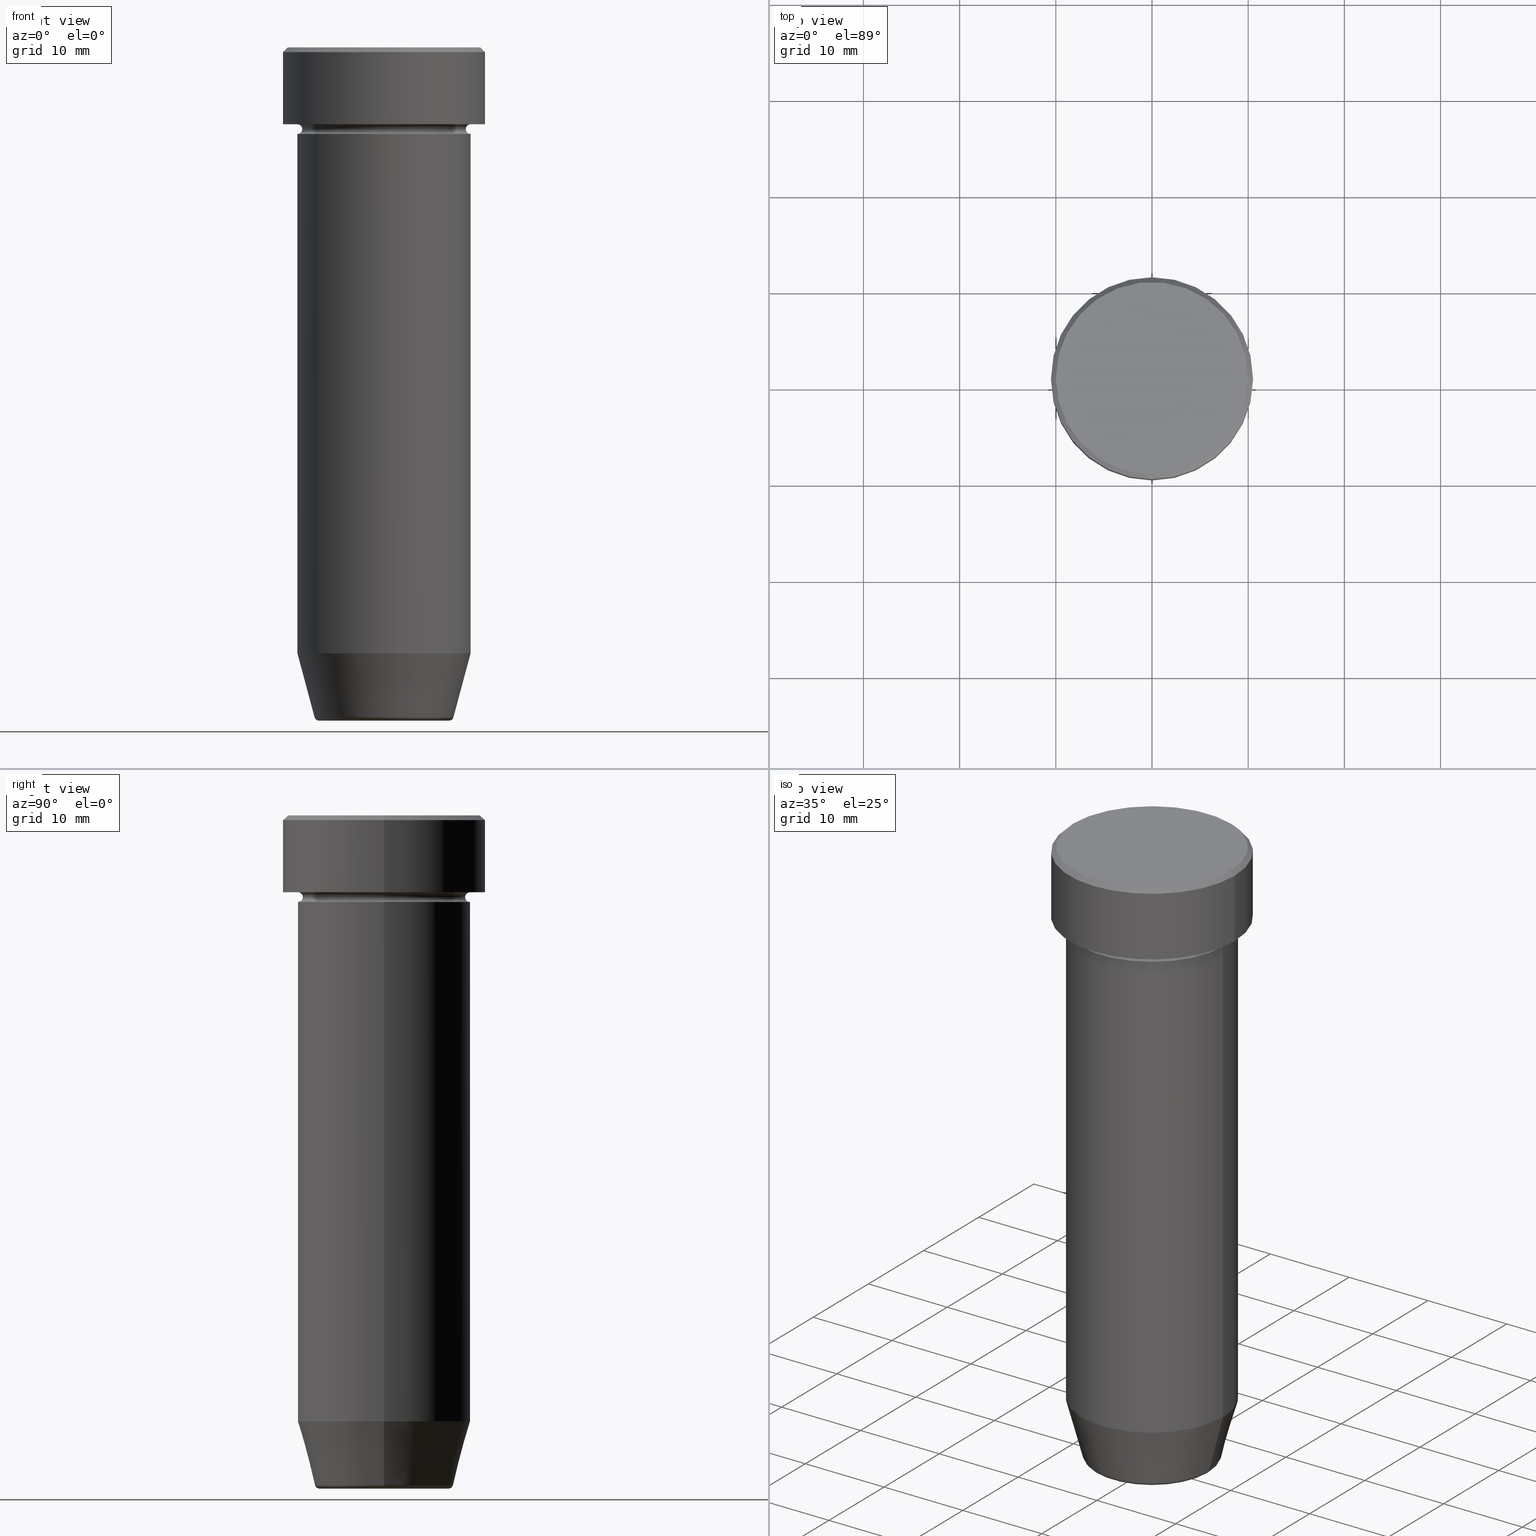
[diagram: canonical four-view strip — front | top / right | iso, engineering-drawing reading convention]
A machine part, canonical four-view strip (front | top / right | iso — engineering-drawing reading convention). The complete STEP part file that produces these views, byte-faithful:
ISO-10303-21;
HEADER;
FILE_DESCRIPTION (( 'STEP AP203' ),
    '1' );
FILE_NAME ('5c41.STEP',
    '2024-01-02T22:09:06',
    ( '' ),
    ( '' ),
    'SwSTEP 2.0',
    'SolidWorks 2019',
    '' );
FILE_SCHEMA (( 'CONFIG_CONTROL_DESIGN' ));
ENDSEC;

DATA;
#1 = AXIS2_PLACEMENT_3D ( 'NONE', #76, #466, #593 ) ;
#2 = DIRECTION ( 'NONE',  ( -1.000000000000000000, 0.000000000000000000, 0.000000000000000000 ) ) ;
#3 = FACE_OUTER_BOUND ( 'NONE', #140, .T. ) ;
#4 = CARTESIAN_POINT ( 'NONE',  ( 0.000000000000000000, 0.000000000000000000, 0.000000000000000000 ) ) ;
#5 = APPROVAL_DATE_TIME ( #443, #194 ) ;
#6 = AXIS2_PLACEMENT_3D ( 'NONE', #481, #148, #513 ) ;
#7 = EDGE_LOOP ( 'NONE', ( #433, #270, #402, #157 ) ) ;
#8 = PLANE ( 'NONE',  #525 ) ;
#9 = EDGE_CURVE ( 'NONE', #576, #27, #436, .T. ) ;
#10 = DIRECTION ( 'NONE',  ( 1.000000000000000000, 0.000000000000000000, 0.000000000000000000 ) ) ;
#11 = CARTESIAN_POINT ( 'NONE',  ( 8.499999999999998224, 0.000000000000000000, -8.500000000000000000 ) ) ;
#12 = AXIS2_PLACEMENT_3D ( 'NONE', #543, #279, #467 ) ;
#13 = DIRECTION ( 'NONE',  ( -1.000000000000000000, 0.000000000000000000, -0.000000000000000000 ) ) ;
#14 = VERTEX_POINT ( 'NONE', #256 ) ;
#15 = AXIS2_PLACEMENT_3D ( 'NONE', #400, #403, #258 ) ;
#16 = EDGE_CURVE ( 'NONE', #189, #68, #250, .T. ) ;
#17 = VERTEX_POINT ( 'NONE', #309 ) ;
#18 = CARTESIAN_POINT ( 'NONE',  ( 0.000000000000000000, 0.000000000000000000, -22.00000000000000000 ) ) ;
#19 = ADVANCED_FACE ( 'NONE', ( #540 ), #352, .T. ) ;
#20 = ORIENTED_EDGE ( 'NONE', *, *, #134, .T. ) ;
#21 = APPLICATION_PROTOCOL_DEFINITION ( 'international standard', 'config_control_design', 1994, #122 ) ;
#22 = DIRECTION ( 'NONE',  ( -1.000000000000000000, 0.000000000000000000, -0.000000000000000000 ) ) ;
#23 = CONICAL_SURFACE ( 'NONE', #12, 7.124355652982132803, 0.2617993877991502405 ) ;
#24 = EDGE_CURVE ( 'NONE', #14, #412, #153, .T. ) ;
#25 = CARTESIAN_POINT ( 'NONE',  ( 0.000000000000000000, 0.000000000000000000, 0.000000000000000000 ) ) ;
#26 = TOROIDAL_SURFACE ( 'NONE', #186, 9.000000000000000000, 0.5000000000000000000 ) ;
#27 = VERTEX_POINT ( 'NONE', #269 ) ;
#28 = ADVANCED_FACE ( 'NONE', ( #471 ), #130, .T. ) ;
#29 = DIRECTION ( 'NONE',  ( -0.000000000000000000, -0.000000000000000000, 1.000000000000000000 ) ) ;
#30 = ORIENTED_EDGE ( 'NONE', *, *, #490, .F. ) ;
#31 = APPROVAL_ROLE ( '' ) ;
#32 = CARTESIAN_POINT ( 'NONE',  ( -9.000000000000000000, 1.102182119232617714E-15, -63.00000000000000000 ) ) ;
#33 = ADVANCED_FACE ( 'NONE', ( #230 ), #23, .T. ) ;
#34 =( NAMED_UNIT ( * ) SI_UNIT ( $, .STERADIAN. ) SOLID_ANGLE_UNIT ( ) );
#35 = CARTESIAN_POINT ( 'NONE',  ( 0.000000000000000000, 0.000000000000000000, 0.000000000000000000 ) ) ;
#36 = ORIENTED_EDGE ( 'NONE', *, *, #241, .T. ) ;
#37 = AXIS2_PLACEMENT_3D ( 'NONE', #71, #273, #368 ) ;
#38 = FACE_OUTER_BOUND ( 'NONE', #114, .T. ) ;
#39 = EDGE_LOOP ( 'NONE', ( #353, #228, #390, #304 ) ) ;
#40 = DIRECTION ( 'NONE',  ( -1.000000000000000000, 0.000000000000000000, 0.000000000000000000 ) ) ;
#41 = ORIENTED_EDGE ( 'NONE', *, *, #328, .T. ) ;
#42 = AXIS2_PLACEMENT_3D ( 'NONE', #274, #372, #133 ) ;
#43 = CONICAL_SURFACE ( 'NONE', #147, 10.00000000000000178, 0.7853981633974447263 ) ;
#44 = AXIS2_PLACEMENT_3D ( 'NONE', #294, #145, #290 ) ;
#45 = FACE_OUTER_BOUND ( 'NONE', #202, .T. ) ;
#46 = ADVANCED_FACE ( 'NONE', ( #420 ), #298, .T. ) ;
#47 = ORIENTED_EDGE ( 'NONE', *, *, #204, .T. ) ;
#48 = CARTESIAN_POINT ( 'NONE',  ( 0.000000000000000000, 0.000000000000000000, -22.00000000000000000 ) ) ;
#49 = CARTESIAN_POINT ( 'NONE',  ( -9.000000000000000000, 1.102182119232617714E-15, 0.000000000000000000 ) ) ;
#50 = CIRCLE ( 'NONE', #15, 9.000000000000000000 ) ;
#51 = AXIS2_PLACEMENT_3D ( 'NONE', #452, #522, #97 ) ;
#52 = LINE ( 'NONE', #268, #191 ) ;
#53 = PERSON_AND_ORGANIZATION ( #166, #411 ) ;
#54 = DIRECTION ( 'NONE',  ( 1.224646799147353207E-16, 1.000000000000000000, 0.000000000000000000 ) ) ;
#55 = ORIENTED_EDGE ( 'NONE', *, *, #335, .T. ) ;
#56 = EDGE_CURVE ( 'NONE', #27, #576, #446, .T. ) ;
#57 = DIRECTION ( 'NONE',  ( 1.000000000000000000, 0.000000000000000000, 0.000000000000000000 ) ) ;
#58 = VERTEX_POINT ( 'NONE', #240 ) ;
#59 = ORIENTED_EDGE ( 'NONE', *, *, #138, .F. ) ;
#60 = CIRCLE ( 'NONE', #72, 0.5000000000000004441 ) ;
#61 = DIRECTION ( 'NONE',  ( -1.000000000000000000, 1.224646799147351482E-16, 0.000000000000000000 ) ) ;
#62 = CC_DESIGN_APPROVAL ( #88, ( #209 ) ) ;
#63 = DIRECTION ( 'NONE',  ( -1.000000000000000000, 1.224646799147353454E-16, 0.000000000000000000 ) ) ;
#64 = PERSON_AND_ORGANIZATION_ROLE ( 'design_owner' ) ;
#65 = CARTESIAN_POINT ( 'NONE',  ( 6.740692158992652061, 0.000000000000000000, -70.00000000000000000 ) ) ;
#66 = ORIENTED_EDGE ( 'NONE', *, *, #101, .T. ) ;
#67 = EDGE_CURVE ( 'NONE', #14, #245, #337, .T. ) ;
#68 = VERTEX_POINT ( 'NONE', #291 ) ;
#69 = FACE_OUTER_BOUND ( 'NONE', #440, .T. ) ;
#70 = DIRECTION ( 'NONE',  ( -0.000000000000000000, -0.000000000000000000, 1.000000000000000000 ) ) ;
#71 = CARTESIAN_POINT ( 'NONE',  ( 0.000000000000000000, 0.000000000000000000, 0.000000000000000000 ) ) ;
#72 = AXIS2_PLACEMENT_3D ( 'NONE', #296, #518, #95 ) ;
#73 = CC_DESIGN_APPROVAL ( #93, ( #451 ) ) ;
#74 = ORIENTED_EDGE ( 'NONE', *, *, #241, .F. ) ;
#75 = DATE_AND_TIME ( #314, #385 ) ;
#76 = CARTESIAN_POINT ( 'NONE',  ( 0.000000000000000000, 0.000000000000000000, -70.00000000000000000 ) ) ;
#77 = DATE_AND_TIME ( #218, #236 ) ;
#78 = LINE ( 'NONE', #183, #184 ) ;
#79 = ORIENTED_EDGE ( 'NONE', *, *, #216, .F. ) ;
#80 = CARTESIAN_POINT ( 'NONE',  ( 9.000000000000000000, 0.000000000000000000, -9.000000000000001776 ) ) ;
#81 = EDGE_CURVE ( 'NONE', #245, #319, #60, .T. ) ;
#82 = AXIS2_PLACEMENT_3D ( 'NONE', #91, #340, #383 ) ;
#83 = ORIENTED_EDGE ( 'NONE', *, *, #514, .F. ) ;
#84 = ORIENTED_EDGE ( 'NONE', *, *, #595, .F. ) ;
#85 = DIRECTION ( 'NONE',  ( -0.000000000000000000, -0.000000000000000000, 1.000000000000000000 ) ) ;
#86 = CALENDAR_DATE ( 2024, 2, 1 ) ;
#87 = CARTESIAN_POINT ( 'NONE',  ( 7.124355652982132803, 0.000000000000000000, -70.00000000000000000 ) ) ;
#88 = APPROVAL ( #544, 'NEUR�EN�' ) ;
#89 = AXIS2_PLACEMENT_3D ( 'NONE', #373, #70, #235 ) ;
#90 = CARTESIAN_POINT ( 'NONE',  ( 0.000000000000000000, 0.000000000000000000, 0.000000000000000000 ) ) ;
#91 = CARTESIAN_POINT ( 'NONE',  ( 0.000000000000000000, 0.000000000000000000, -8.500000000000000000 ) ) ;
#92 = CIRCLE ( 'NONE', #146, 9.000000000000000000 ) ;
#93 = APPROVAL ( #277, 'NEUR�EN�' ) ;
#94 = CIRCLE ( 'NONE', #526, 9.000000000000000000 ) ;
#95 = DIRECTION ( 'NONE',  ( 0.000000000000000000, 0.000000000000000000, -1.000000000000000000 ) ) ;
#96 = CARTESIAN_POINT ( 'NONE',  ( -9.000000000000000000, 1.102182119232617714E-15, -22.00000000000000000 ) ) ;
#97 = DIRECTION ( 'NONE',  ( 1.000000000000000000, 0.000000000000000000, 0.000000000000000000 ) ) ;
#98 = ORIENTED_EDGE ( 'NONE', *, *, #335, .F. ) ;
#99 = CARTESIAN_POINT ( 'NONE',  ( 6.740692158992652061, 0.000000000000000000, -69.50000000000000000 ) ) ;
#100 = SHAPE_DEFINITION_REPRESENTATION ( #275, #547 ) ;
#101 = EDGE_CURVE ( 'NONE', #109, #307, #341, .T. ) ;
#102 = CIRCLE ( 'NONE', #310, 7.223655072137190380 ) ;
#103 = CIRCLE ( 'NONE', #334, 9.000000000000000000 ) ;
#104 = ORIENTED_EDGE ( 'NONE', *, *, #168, .F. ) ;
#105 = CARTESIAN_POINT ( 'NONE',  ( 0.000000000000000000, 0.000000000000000000, -70.00000000000000000 ) ) ;
#106 = ORIENTED_EDGE ( 'NONE', *, *, #196, .F. ) ;
#107 = ORIENTED_EDGE ( 'NONE', *, *, #24, .T. ) ;
#108 = CARTESIAN_POINT ( 'NONE',  ( 0.000000000000000000, 9.000000000000000000, -22.00000000000000000 ) ) ;
#109 = VERTEX_POINT ( 'NONE', #149 ) ;
#110 = DIRECTION ( 'NONE',  ( 1.000000000000000000, 0.000000000000000000, 0.000000000000000000 ) ) ;
#111 = ORIENTED_EDGE ( 'NONE', *, *, #155, .F. ) ;
#112 = CARTESIAN_POINT ( 'NONE',  ( -9.000000000000000000, 0.000000000000000000, -8.000000000000000000 ) ) ;
#113 = DIRECTION ( 'NONE',  ( -0.7071067811865450192, 0.000000000000000000, -0.7071067811865500152 ) ) ;
#114 = EDGE_LOOP ( 'NONE', ( #346, #396, #331, #170 ) ) ;
#115 = CIRCLE ( 'NONE', #397, 9.000000000000000000 ) ;
#116 = CARTESIAN_POINT ( 'NONE',  ( 0.000000000000000000, 0.000000000000000000, -69.62940952255125637 ) ) ;
#117 = LOCAL_TIME ( 23, 9, 6.000000000000000000, #589 ) ;
#118 = DIRECTION ( 'NONE',  ( 1.224646799147353207E-16, 1.000000000000000000, 0.000000000000000000 ) ) ;
#119 = PRODUCT ( '5c41', '5c41', '', ( #464 ) ) ;
#120 = CARTESIAN_POINT ( 'NONE',  ( 7.223655072137190380, 0.000000000000000000, -69.62940952255125637 ) ) ;
#121 = EDGE_CURVE ( 'NONE', #576, #412, #482, .T. ) ;
#122 = APPLICATION_CONTEXT ( 'configuration controlled 3d designs of mechanical parts and assemblies' ) ;
#123 = ORIENTED_EDGE ( 'NONE', *, *, #282, .F. ) ;
#124 = ORIENTED_EDGE ( 'NONE', *, *, #138, .T. ) ;
#125 = DIRECTION ( 'NONE',  ( -0.000000000000000000, -0.000000000000000000, 1.000000000000000000 ) ) ;
#126 = ADVANCED_FACE ( 'NONE', ( #476 ), #8, .T. ) ;
#127 = COORDINATED_UNIVERSAL_TIME_OFFSET ( 1, 0, .AHEAD. ) ;
#128 = DIRECTION ( 'NONE',  ( -1.000000000000000000, 0.000000000000000000, 0.000000000000000000 ) ) ;
#129 = AXIS2_PLACEMENT_3D ( 'NONE', #35, #29, #415 ) ;
#130 = CYLINDRICAL_SURFACE ( 'NONE', #428, 9.000000000000000000 ) ;
#131 = AXIS2_PLACEMENT_3D ( 'NONE', #448, #488, #394 ) ;
#132 = DATE_AND_TIME ( #369, #117 ) ;
#133 = DIRECTION ( 'NONE',  ( -1.000000000000000000, 0.000000000000000000, 0.000000000000000000 ) ) ;
#134 = EDGE_CURVE ( 'NONE', #399, #305, #102, .T. ) ;
#135 = FACE_OUTER_BOUND ( 'NONE', #7, .T. ) ;
#136 = EDGE_LOOP ( 'NONE', ( #84, #20, #564, #492 ) ) ;
#137 = CARTESIAN_POINT ( 'NONE',  ( 0.000000000000000000, 0.000000000000000000, -69.62940952255125637 ) ) ;
#138 = EDGE_CURVE ( 'NONE', #289, #460, #524, .T. ) ;
#139 = CIRCLE ( 'NONE', #302, 0.5000000000000004441 ) ;
#140 = EDGE_LOOP ( 'NONE', ( #98, #260, #83, #160 ) ) ;
#141 = SECURITY_CLASSIFICATION ( '', '', #386 ) ;
#142 = CYLINDRICAL_SURFACE ( 'NONE', #192, 9.000000000000000000 ) ;
#143 = CC_DESIGN_PERSON_AND_ORGANIZATION_ASSIGNMENT ( #249, #336, ( #451 ) ) ;
#144 = EDGE_CURVE ( 'NONE', #68, #399, #439, .T. ) ;
#145 = DIRECTION ( 'NONE',  ( -0.000000000000000000, -0.000000000000000000, 1.000000000000000000 ) ) ;
#146 = AXIS2_PLACEMENT_3D ( 'NONE', #349, #529, #110 ) ;
#147 = AXIS2_PLACEMENT_3D ( 'NONE', #4, #198, #2 ) ;
#148 = DIRECTION ( 'NONE',  ( -0.000000000000000000, -0.000000000000000000, 1.000000000000000000 ) ) ;
#149 = CARTESIAN_POINT ( 'NONE',  ( -10.50000000000000000, 1.285879139104720831E-15, -8.000000000000000000 ) ) ;
#150 = CC_DESIGN_DATE_AND_TIME_ASSIGNMENT ( #75, #577, ( #209 ) ) ;
#151 = EDGE_CURVE ( 'NONE', #58, #289, #50, .T. ) ;
#152 = ORIENTED_EDGE ( 'NONE', *, *, #155, .T. ) ;
#153 = CIRCLE ( 'NONE', #219, 0.5000000000000004441 ) ;
#154 = FACE_OUTER_BOUND ( 'NONE', #447, .T. ) ;
#155 = EDGE_CURVE ( 'NONE', #14, #530, #139, .T. ) ;
#156 = DIRECTION ( 'NONE',  ( -0.000000000000000000, -0.000000000000000000, 1.000000000000000000 ) ) ;
#157 = ORIENTED_EDGE ( 'NONE', *, *, #231, .F. ) ;
#158 = AXIS2_PLACEMENT_3D ( 'NONE', #278, #545, #239 ) ;
#159 = AXIS2_PLACEMENT_3D ( 'NONE', #137, #85, #40 ) ;
#160 = ORIENTED_EDGE ( 'NONE', *, *, #195, .F. ) ;
#161 = DIRECTION ( 'NONE',  ( 0.000000000000000000, 0.000000000000000000, -1.000000000000000000 ) ) ;
#162 = DIRECTION ( 'NONE',  ( 1.000000000000000000, 0.000000000000000000, 0.000000000000000000 ) ) ;
#163 = DIRECTION ( 'NONE',  ( 0.000000000000000000, 0.000000000000000000, -1.000000000000000000 ) ) ;
#164 = CARTESIAN_POINT ( 'NONE',  ( -9.000000000000000000, 1.102182119232617714E-15, 0.000000000000000000 ) ) ;
#165 = CARTESIAN_POINT ( 'NONE',  ( 0.000000000000000000, 0.000000000000000000, -22.00000000000000000 ) ) ;
#166 = PERSON ( 'NEUR�EN�', 'NEUR�EN�', 'NEUR�EN�', ('NEUR�EN�'), ('NEUR�EN�'), ('NEUR�EN�') ) ;
#167 = ORIENTED_EDGE ( 'NONE', *, *, #9, .F. ) ;
#168 = EDGE_CURVE ( 'NONE', #325, #221, #308, .T. ) ;
#169 = FACE_OUTER_BOUND ( 'NONE', #374, .T. ) ;
#170 = ORIENTED_EDGE ( 'NONE', *, *, #421, .T. ) ;
#171 = PERSON_AND_ORGANIZATION ( #166, #411 ) ;
#172 = VECTOR ( 'NONE', #438, 1000.000000000000000 ) ;
#173 = DIRECTION ( 'NONE',  ( -1.224646799147353207E-16, 1.000000000000000000, 0.000000000000000000 ) ) ;
#174 = AXIS2_PLACEMENT_3D ( 'NONE', #329, #223, #419 ) ;
#175 = EDGE_LOOP ( 'NONE', ( #568, #55 ) ) ;
#176 = EDGE_LOOP ( 'NONE', ( #232, #498, #565, #178 ) ) ;
#177 = ADVANCED_FACE ( 'NONE', ( #345 ), #431, .T. ) ;
#178 = ORIENTED_EDGE ( 'NONE', *, *, #328, .F. ) ;
#179 = PERSON_AND_ORGANIZATION ( #166, #411 ) ;
#180 = DIRECTION ( 'NONE',  ( 0.000000000000000000, 0.000000000000000000, -1.000000000000000000 ) ) ;
#181 = AXIS2_PLACEMENT_3D ( 'NONE', #185, #548, #225 ) ;
#182 = APPROVAL_ROLE ( '' ) ;
#183 = CARTESIAN_POINT ( 'NONE',  ( 9.000000000000000000, 0.000000000000000000, 0.000000000000000000 ) ) ;
#184 = VECTOR ( 'NONE', #505, 1000.000000000000000 ) ;
#185 = CARTESIAN_POINT ( 'NONE',  ( 0.000000000000000000, 0.000000000000000000, -22.00000000000000000 ) ) ;
#186 = AXIS2_PLACEMENT_3D ( 'NONE', #557, #434, #333 ) ;
#187 = LINE ( 'NONE', #542, #293 ) ;
#188 = DIRECTION ( 'NONE',  ( 1.000000000000000000, 0.000000000000000000, 0.000000000000000000 ) ) ;
#189 = VERTEX_POINT ( 'NONE', #65 ) ;
#190 = CARTESIAN_POINT ( 'NONE',  ( 0.000000000000000000, 0.000000000000000000, -9.000000000000001776 ) ) ;
#191 = VECTOR ( 'NONE', #113, 1000.000000000000000 ) ;
#192 = AXIS2_PLACEMENT_3D ( 'NONE', #90, #515, #430 ) ;
#193 = DIRECTION ( 'NONE',  ( -0.000000000000000000, -0.000000000000000000, 1.000000000000000000 ) ) ;
#194 = APPROVAL ( #257, 'NEUR�EN�' ) ;
#195 = EDGE_CURVE ( 'NONE', #189, #305, #410, .T. ) ;
#196 = EDGE_CURVE ( 'NONE', #307, #109, #264, .T. ) ;
#197 = AXIS2_PLACEMENT_3D ( 'NONE', #445, #442, #162 ) ;
#198 = DIRECTION ( 'NONE',  ( 0.000000000000000000, 0.000000000000000000, -1.000000000000000000 ) ) ;
#199 = DIRECTION ( 'NONE',  ( 1.000000000000000000, 0.000000000000000000, 0.000000000000000000 ) ) ;
#200 = CIRCLE ( 'NONE', #422, 10.00000000000000178 ) ;
#201 = CC_DESIGN_APPROVAL ( #194, ( #141 ) ) ;
#202 = EDGE_LOOP ( 'NONE', ( #74, #506, #417, #79 ) ) ;
#203 = CARTESIAN_POINT ( 'NONE',  ( 0.000000000000000000, 0.000000000000000000, 0.000000000000000000 ) ) ;
#204 = EDGE_CURVE ( 'NONE', #221, #596, #222, .T. ) ;
#205 = CARTESIAN_POINT ( 'NONE',  ( -9.000000000000000000, 1.102182119232617714E-15, -22.00000000000000000 ) ) ;
#206 = ORIENTED_EDGE ( 'NONE', *, *, #312, .F. ) ;
#207 = DIRECTION ( 'NONE',  ( 0.000000000000000000, 0.000000000000000000, -1.000000000000000000 ) ) ;
#208 = ORIENTED_EDGE ( 'NONE', *, *, #67, .F. ) ;
#209 = PRODUCT_DEFINITION ( 'NEZN�M�', '', #451, #247 ) ;
#210 = MANIFOLD_SOLID_BREP ( 'Zaoblit4', #354 ) ;
#211 = DIRECTION ( 'NONE',  ( -0.000000000000000000, -0.000000000000000000, 1.000000000000000000 ) ) ;
#212 = EDGE_LOOP ( 'NONE', ( #123, #377, #152, #206 ) ) ;
#213 = ORIENTED_EDGE ( 'NONE', *, *, #317, .F. ) ;
#214 = VECTOR ( 'NONE', #266, 1000.000000000000000 ) ;
#215 = ORIENTED_EDGE ( 'NONE', *, *, #317, .T. ) ;
#216 = EDGE_CURVE ( 'NONE', #584, #596, #52, .T. ) ;
#217 = DIRECTION ( 'NONE',  ( -1.000000000000000000, 0.000000000000000000, 0.000000000000000000 ) ) ;
#218 = CALENDAR_DATE ( 2024, 2, 1 ) ;
#219 = AXIS2_PLACEMENT_3D ( 'NONE', #455, #118, #63 ) ;
#220 = CARTESIAN_POINT ( 'NONE',  ( 0.000000000000000000, 0.000000000000000000, -8.000000000000000000 ) ) ;
#221 = VERTEX_POINT ( 'NONE', #493 ) ;
#222 = CIRCLE ( 'NONE', #320, 10.50000000000000000 ) ;
#223 = DIRECTION ( 'NONE',  ( -0.000000000000000000, -0.000000000000000000, 1.000000000000000000 ) ) ;
#224 = AXIS2_PLACEMENT_3D ( 'NONE', #427, #598, #10 ) ;
#225 = DIRECTION ( 'NONE',  ( 1.000000000000000000, 0.000000000000000000, 0.000000000000000000 ) ) ;
#226 = ORIENTED_EDGE ( 'NONE', *, *, #560, .F. ) ;
#227 = CARTESIAN_POINT ( 'NONE',  ( 0.000000000000000000, 0.000000000000000000, -8.000000000000000000 ) ) ;
#228 = ORIENTED_EDGE ( 'NONE', *, *, #595, .T. ) ;
#229 = CYLINDRICAL_SURFACE ( 'NONE', #558, 10.50000000000000000 ) ;
#230 = FACE_OUTER_BOUND ( 'NONE', #136, .T. ) ;
#231 = EDGE_CURVE ( 'NONE', #307, #221, #497, .T. ) ;
#232 = ORIENTED_EDGE ( 'NONE', *, *, #56, .T. ) ;
#233 = LINE ( 'NONE', #364, #380 ) ;
#234 = DIRECTION ( 'NONE',  ( -0.000000000000000000, -0.000000000000000000, 1.000000000000000000 ) ) ;
#235 = DIRECTION ( 'NONE',  ( 1.000000000000000000, 0.000000000000000000, 0.000000000000000000 ) ) ;
#236 = LOCAL_TIME ( 23, 9, 6.000000000000000000, #127 ) ;
#237 = ADVANCED_FACE ( 'NONE', ( #169 ), #485, .F. ) ;
#238 = ORIENTED_EDGE ( 'NONE', *, *, #282, .T. ) ;
#239 = DIRECTION ( 'NONE',  ( 1.000000000000000000, 0.000000000000000000, 0.000000000000000000 ) ) ;
#240 = CARTESIAN_POINT ( 'NONE',  ( 9.000000000000000000, 0.000000000000000000, -63.00000000000000000 ) ) ;
#241 = EDGE_CURVE ( 'NONE', #325, #584, #200, .T. ) ;
#242 = PERSON_AND_ORGANIZATION ( #166, #411 ) ;
#243 = CC_DESIGN_PERSON_AND_ORGANIZATION_ASSIGNMENT ( #327, #538, ( #451 ) ) ;
#244 = AXIS2_PLACEMENT_3D ( 'NONE', #25, #180, #590 ) ;
#245 = VERTEX_POINT ( 'NONE', #11 ) ;
#246 = VECTOR ( 'NONE', #553, 1000.000000000000114 ) ;
#247 = DESIGN_CONTEXT ( 'detailed design', #122, 'design' ) ;
#248 = ADVANCED_FACE ( 'NONE', ( #563, #154 ), #569, .T. ) ;
#249 = PERSON_AND_ORGANIZATION ( #166, #411 ) ;
#250 = CIRCLE ( 'NONE', #197, 6.740692158992652061 ) ;
#251 = CARTESIAN_POINT ( 'NONE',  ( 0.000000000000000000, 0.000000000000000000, -8.000000000000000000 ) ) ;
#252 = EDGE_CURVE ( 'NONE', #412, #319, #92, .T. ) ;
#253 = CIRCLE ( 'NONE', #224, 10.50000000000000000 ) ;
#254 = ORIENTED_EDGE ( 'NONE', *, *, #252, .T. ) ;
#255 = CARTESIAN_POINT ( 'NONE',  ( 0.000000000000000000, 0.000000000000000000, 0.000000000000000000 ) ) ;
#256 = CARTESIAN_POINT ( 'NONE',  ( -8.499999999999998224, 1.071565949253933927E-15, -8.500000000000000000 ) ) ;
#257 = APPROVAL_STATUS ( 'not_yet_approved' ) ;
#258 = DIRECTION ( 'NONE',  ( 1.000000000000000000, 0.000000000000000000, 0.000000000000000000 ) ) ;
#259 = DIRECTION ( 'NONE',  ( 1.000000000000000000, 0.000000000000000000, 0.000000000000000000 ) ) ;
#260 = ORIENTED_EDGE ( 'NONE', *, *, #144, .T. ) ;
#261 = ADVANCED_FACE ( 'NONE', ( #499 ), #365, .T. ) ;
#262 = DIRECTION ( 'NONE',  ( 0.7071067811865450192, 8.659560562354902043E-17, -0.7071067811865500152 ) ) ;
#263 = ORIENTED_EDGE ( 'NONE', *, *, #343, .F. ) ;
#264 = CIRCLE ( 'NONE', #536, 10.50000000000000000 ) ;
#265 = LOCAL_TIME ( 23, 9, 6.000000000000000000, #483 ) ;
#266 = DIRECTION ( 'NONE',  ( -0.000000000000000000, -0.000000000000000000, 1.000000000000000000 ) ) ;
#267 = ORIENTED_EDGE ( 'NONE', *, *, #134, .F. ) ;
#268 = CARTESIAN_POINT ( 'NONE',  ( -10.00000000000000178, 0.000000000000000000, 0.000000000000000000 ) ) ;
#269 = CARTESIAN_POINT ( 'NONE',  ( 9.000000000000000000, 0.000000000000000000, -22.00000000000000000 ) ) ;
#270 = ORIENTED_EDGE ( 'NONE', *, *, #456, .T. ) ;
#271 = DIRECTION ( 'NONE',  ( -0.000000000000000000, -0.000000000000000000, 1.000000000000000000 ) ) ;
#272 = ADVANCED_FACE ( 'NONE', ( #508 ), #286, .F. ) ;
#273 = DIRECTION ( 'NONE',  ( 0.000000000000000000, 0.000000000000000000, 1.000000000000000000 ) ) ;
#274 = CARTESIAN_POINT ( 'NONE',  ( 0.000000000000000000, 0.000000000000000000, -8.500000000000000000 ) ) ;
#275 = PRODUCT_DEFINITION_SHAPE ( 'NONE', 'NONE',  #209 ) ;
#276 = ORIENTED_EDGE ( 'NONE', *, *, #477, .F. ) ;
#277 = APPROVAL_STATUS ( 'not_yet_approved' ) ;
#278 = CARTESIAN_POINT ( 'NONE',  ( 0.000000000000000000, 0.000000000000000000, 0.000000000000000000 ) ) ;
#279 = DIRECTION ( 'NONE',  ( -0.000000000000000000, -0.000000000000000000, 1.000000000000000000 ) ) ;
#280 = PERSON_AND_ORGANIZATION ( #166, #411 ) ;
#281 = CARTESIAN_POINT ( 'NONE',  ( 10.00000000000000178, 1.255262969126037241E-15, 0.000000000000000000 ) ) ;
#282 = EDGE_CURVE ( 'NONE', #245, #17, #384, .T. ) ;
#283 = ORIENTED_EDGE ( 'NONE', *, *, #456, .F. ) ;
#284 = COORDINATED_UNIVERSAL_TIME_OFFSET ( 1, 0, .AHEAD. ) ;
#285 = CARTESIAN_POINT ( 'NONE',  ( 0.000000000000000000, 0.000000000000000000, 0.000000000000000000 ) ) ;
#286 = TOROIDAL_SURFACE ( 'NONE', #42, 9.000000000000000000, 0.5000000000000000000 ) ;
#287 = EDGE_LOOP ( 'NONE', ( #300, #124, #276, #263 ) ) ;
#288 = APPLICATION_CONTEXT ( 'configuration controlled 3d designs of mechanical parts and assemblies' ) ;
#289 = VERTEX_POINT ( 'NONE', #32 ) ;
#290 = DIRECTION ( 'NONE',  ( 1.000000000000000000, 0.000000000000000000, 0.000000000000000000 ) ) ;
#291 = CARTESIAN_POINT ( 'NONE',  ( -6.740692158992652061, 8.550696569392681737E-16, -70.00000000000000000 ) ) ;
#292 = AXIS2_PLACEMENT_3D ( 'NONE', #322, #234, #424 ) ;
#293 = VECTOR ( 'NONE', #271, 1000.000000000000000 ) ;
#294 = CARTESIAN_POINT ( 'NONE',  ( 0.000000000000000000, 0.000000000000000000, -69.50000000000000000 ) ) ;
#295 = ADVANCED_FACE ( 'NONE', ( #362 ), #502, .T. ) ;
#296 = CARTESIAN_POINT ( 'NONE',  ( 9.000000000000000000, 0.000000000000000000, -8.500000000000000000 ) ) ;
#297 = ADVANCED_FACE ( 'NONE', ( #330 ), #470, .T. ) ;
#298 = TOROIDAL_SURFACE ( 'NONE', #89, 6.740692158992652061, 0.5000000000000000000 ) ;
#299 = FACE_OUTER_BOUND ( 'NONE', #175, .T. ) ;
#300 = ORIENTED_EDGE ( 'NONE', *, *, #151, .T. ) ;
#301 = DIRECTION ( 'NONE',  ( 0.000000000000000000, 0.000000000000000000, -1.000000000000000000 ) ) ;
#302 = AXIS2_PLACEMENT_3D ( 'NONE', #306, #491, #207 ) ;
#303 = CARTESIAN_POINT ( 'NONE',  ( 10.00000000000000178, 1.224646799147353454E-15, 0.000000000000000000 ) ) ;
#304 = ORIENTED_EDGE ( 'NONE', *, *, #463, .F. ) ;
#305 = VERTEX_POINT ( 'NONE', #120 ) ;
#306 = CARTESIAN_POINT ( 'NONE',  ( -9.000000000000000000, 0.000000000000000000, -8.500000000000000000 ) ) ;
#307 = VERTEX_POINT ( 'NONE', #578 ) ;
#308 = LINE ( 'NONE', #303, #495 ) ;
#309 = CARTESIAN_POINT ( 'NONE',  ( 9.000000000000000000, 1.102182119232617714E-15, -8.000000000000000000 ) ) ;
#310 = AXIS2_PLACEMENT_3D ( 'NONE', #116, #211, #217 ) ;
#311 = TOROIDAL_SURFACE ( 'NONE', #174, 9.000000000000000000, 0.5000000000000000000 ) ;
#312 = EDGE_CURVE ( 'NONE', #17, #530, #115, .T. ) ;
#313 = CARTESIAN_POINT ( 'NONE',  ( 0.000000000000000000, 0.000000000000000000, -0.5000000000000023315 ) ) ;
#314 = CALENDAR_DATE ( 2024, 2, 1 ) ;
#315 = DIRECTION ( 'NONE',  ( -0.000000000000000000, -0.000000000000000000, 1.000000000000000000 ) ) ;
#316 = ORIENTED_EDGE ( 'NONE', *, *, #343, .T. ) ;
#317 = EDGE_CURVE ( 'NONE', #584, #325, #546, .T. ) ;
#318 = CARTESIAN_POINT ( 'NONE',  ( -7.223655072137190380, 9.934123627281765110E-16, -69.62940952255125637 ) ) ;
#319 = VERTEX_POINT ( 'NONE', #80 ) ;
#320 = AXIS2_PLACEMENT_3D ( 'NONE', #313, #161, #391 ) ;
#321 = AXIS2_PLACEMENT_3D ( 'NONE', #190, #378, #511 ) ;
#322 = CARTESIAN_POINT ( 'NONE',  ( 0.000000000000000000, 0.000000000000000000, 0.000000000000000000 ) ) ;
#323 = AXIS2_PLACEMENT_3D ( 'NONE', #582, #125, #501 ) ;
#324 = CARTESIAN_POINT ( 'NONE',  ( 0.000000000000000000, 0.000000000000000000, 0.000000000000000000 ) ) ;
#325 = VERTEX_POINT ( 'NONE', #281 ) ;
#326 = CC_DESIGN_PERSON_AND_ORGANIZATION_ASSIGNMENT ( #53, #437, ( #141 ) ) ;
#327 = PERSON_AND_ORGANIZATION ( #166, #411 ) ;
#328 = EDGE_CURVE ( 'NONE', #27, #319, #78, .T. ) ;
#329 = CARTESIAN_POINT ( 'NONE',  ( 0.000000000000000000, 0.000000000000000000, -8.500000000000000000 ) ) ;
#330 = FACE_OUTER_BOUND ( 'NONE', #426, .T. ) ;
#331 = ORIENTED_EDGE ( 'NONE', *, *, #81, .T. ) ;
#332 = APPROVAL_ROLE ( '' ) ;
#333 = DIRECTION ( 'NONE',  ( -1.000000000000000000, 0.000000000000000000, 0.000000000000000000 ) ) ;
#334 = AXIS2_PLACEMENT_3D ( 'NONE', #519, #425, #188 ) ;
#335 = EDGE_CURVE ( 'NONE', #68, #189, #472, .T. ) ;
#336 = PERSON_AND_ORGANIZATION_ROLE ( 'design_supplier' ) ;
#337 = CIRCLE ( 'NONE', #82, 8.499999999999998224 ) ;
#338 = ADVANCED_FACE ( 'NONE', ( #69 ), #311, .F. ) ;
#339 = FACE_OUTER_BOUND ( 'NONE', #212, .T. ) ;
#340 = DIRECTION ( 'NONE',  ( -0.000000000000000000, -0.000000000000000000, 1.000000000000000000 ) ) ;
#341 = CIRCLE ( 'NONE', #516, 10.50000000000000000 ) ;
#342 = VECTOR ( 'NONE', #381, 1000.000000000000000 ) ;
#343 = EDGE_CURVE ( 'NONE', #58, #591, #187, .T. ) ;
#344 = CARTESIAN_POINT ( 'NONE',  ( -10.50000000000000000, 1.285879139104720831E-15, 0.000000000000000000 ) ) ;
#345 = FACE_OUTER_BOUND ( 'NONE', #39, .T. ) ;
#346 = ORIENTED_EDGE ( 'NONE', *, *, #24, .F. ) ;
#347 = CARTESIAN_POINT ( 'NONE',  ( 0.000000000000000000, 10.50000000000000000, -8.000000000000000000 ) ) ;
#348 = AXIS2_PLACEMENT_3D ( 'NONE', #347, #489, #13 ) ;
#349 = CARTESIAN_POINT ( 'NONE',  ( 0.000000000000000000, 0.000000000000000000, -9.000000000000001776 ) ) ;
#350 = EDGE_LOOP ( 'NONE', ( #283, #66, #581, #47 ) ) ;
#351 = DIRECTION ( 'NONE',  ( -0.000000000000000000, -0.000000000000000000, 1.000000000000000000 ) ) ;
#352 = CYLINDRICAL_SURFACE ( 'NONE', #406, 10.50000000000000000 ) ;
#353 = ORIENTED_EDGE ( 'NONE', *, *, #514, .T. ) ;
#354 = CLOSED_SHELL ( 'NONE', ( #416, #177, #465, #237, #28, #33, #587, #46 ) ) ;
#355 = PLANE ( 'NONE',  #51 ) ;
#356 = DIRECTION ( 'NONE',  ( -0.000000000000000000, -0.000000000000000000, 1.000000000000000000 ) ) ;
#357 = EDGE_LOOP ( 'NONE', ( #579, #574, #429, #267 ) ) ;
#358 = AXIS2_PLACEMENT_3D ( 'NONE', #105, #351, #532 ) ;
#360 = APPROVAL_DATE_TIME ( #132, #93 ) ;
#359 = LOCAL_TIME ( 23, 9, 6.000000000000000000, #284 ) ;
#361 = ADVANCED_FACE ( 'NONE', ( #135 ), #229, .T. ) ;
#362 = FACE_OUTER_BOUND ( 'NONE', #413, .T. ) ;
#363 = EDGE_LOOP ( 'NONE', ( #409, #238, #226, #111 ) ) ;
#364 = CARTESIAN_POINT ( 'NONE',  ( -7.124355652982132803, 8.724819346411920171E-16, -70.00000000000000000 ) ) ;
#365 = CYLINDRICAL_SURFACE ( 'NONE', #158, 9.000000000000000000 ) ;
#366 = CC_DESIGN_PERSON_AND_ORGANIZATION_ASSIGNMENT ( #280, #64, ( #119 ) ) ;
#367 = DIRECTION ( 'NONE',  ( 1.000000000000000000, 0.000000000000000000, 0.000000000000000000 ) ) ;
#368 = DIRECTION ( 'NONE',  ( 1.000000000000000000, 0.000000000000000000, 0.000000000000000000 ) ) ;
#369 = CALENDAR_DATE ( 2024, 2, 1 ) ;
#370 = AXIS2_PLACEMENT_3D ( 'NONE', #18, #523, #22 ) ;
#371 = APPROVAL_PERSON_ORGANIZATION ( #179, #88, #182 ) ;
#372 = DIRECTION ( 'NONE',  ( 0.000000000000000000, 0.000000000000000000, -1.000000000000000000 ) ) ;
#373 = CARTESIAN_POINT ( 'NONE',  ( 0.000000000000000000, 0.000000000000000000, -69.50000000000000000 ) ) ;
#374 = EDGE_LOOP ( 'NONE', ( #571, #401 ) ) ;
#375 =( LENGTH_UNIT ( ) NAMED_UNIT ( * ) SI_UNIT ( .MILLI., .METRE. ) );
#376 = LINE ( 'NONE', #87, #246 ) ;
#377 = ORIENTED_EDGE ( 'NONE', *, *, #405, .T. ) ;
#378 = DIRECTION ( 'NONE',  ( -0.000000000000000000, -0.000000000000000000, 1.000000000000000000 ) ) ;
#379 = ADVANCED_FACE ( 'NONE', ( #38 ), #504, .F. ) ;
#380 = VECTOR ( 'NONE', #458, 1000.000000000000114 ) ;
#381 = DIRECTION ( 'NONE',  ( -0.000000000000000000, -0.000000000000000000, 1.000000000000000000 ) ) ;
#382 = DIRECTION ( 'NONE',  ( 1.000000000000000000, 0.000000000000000000, 0.000000000000000000 ) ) ;
#383 = DIRECTION ( 'NONE',  ( 1.000000000000000000, 0.000000000000000000, 0.000000000000000000 ) ) ;
#384 = CIRCLE ( 'NONE', #450, 0.5000000000000004441 ) ;
#385 = LOCAL_TIME ( 23, 9, 6.000000000000000000, #418 ) ;
#386 = SECURITY_CLASSIFICATION_LEVEL ( 'unclassified' ) ;
#387 = DIRECTION ( 'NONE',  ( -0.000000000000000000, -0.000000000000000000, 1.000000000000000000 ) ) ;
#388 = ORIENTED_EDGE ( 'NONE', *, *, #81, .F. ) ;
#389 = CARTESIAN_POINT ( 'NONE',  ( 0.000000000000000000, 0.000000000000000000, -63.00000000000000000 ) ) ;
#390 = ORIENTED_EDGE ( 'NONE', *, *, #151, .F. ) ;
#391 = DIRECTION ( 'NONE',  ( 1.000000000000000000, 0.000000000000000000, 0.000000000000000000 ) ) ;
#392 = CARTESIAN_POINT ( 'NONE',  ( 0.000000000000000000, 0.000000000000000000, 0.000000000000000000 ) ) ;
#393 = CLOSED_SHELL ( 'NONE', ( #475, #272, #338, #261, #361, #573, #126, #19, #248, #297, #379, #432, #295 ) ) ;
#394 = DIRECTION ( 'NONE',  ( -1.000000000000000000, 0.000000000000000000, 0.000000000000000000 ) ) ;
#395 = DIRECTION ( 'NONE',  ( 0.000000000000000000, -1.000000000000000000, 0.000000000000000000 ) ) ;
#396 = ORIENTED_EDGE ( 'NONE', *, *, #405, .F. ) ;
#397 = AXIS2_PLACEMENT_3D ( 'NONE', #227, #315, #128 ) ;
#398 = AXIS2_PLACEMENT_3D ( 'NONE', #48, #193, #382 ) ;
#399 = VERTEX_POINT ( 'NONE', #318 ) ;
#400 = CARTESIAN_POINT ( 'NONE',  ( 0.000000000000000000, 0.000000000000000000, -63.00000000000000000 ) ) ;
#401 = ORIENTED_EDGE ( 'NONE', *, *, #490, .T. ) ;
#402 = ORIENTED_EDGE ( 'NONE', *, *, #521, .T. ) ;
#403 = DIRECTION ( 'NONE',  ( -0.000000000000000000, -0.000000000000000000, 1.000000000000000000 ) ) ;
#404 = DIRECTION ( 'NONE',  ( -0.000000000000000000, -0.000000000000000000, 1.000000000000000000 ) ) ;
#405 = EDGE_CURVE ( 'NONE', #245, #14, #592, .T. ) ;
#406 = AXIS2_PLACEMENT_3D ( 'NONE', #392, #156, #494 ) ;
#407 = PERSON_AND_ORGANIZATION ( #166, #411 ) ;
#408 = CARTESIAN_POINT ( 'NONE',  ( -6.740692158992652061, 8.254967076548012366E-16, -69.50000000000000000 ) ) ;
#409 = ORIENTED_EDGE ( 'NONE', *, *, #67, .T. ) ;
#410 = CIRCLE ( 'NONE', #486, 0.5000000000000004441 ) ;
#411 = ORGANIZATION ( 'NEUR�EN�', 'NEUR�EN�', '' ) ;
#412 = VERTEX_POINT ( 'NONE', #597 ) ;
#413 = EDGE_LOOP ( 'NONE', ( #104, #213, #480, #572 ) ) ;
#414 =( NAMED_UNIT ( * ) PLANE_ANGLE_UNIT ( ) SI_UNIT ( $, .RADIAN. ) );
#415 = DIRECTION ( 'NONE',  ( 1.000000000000000000, 0.000000000000000000, 0.000000000000000000 ) ) ;
#416 = ADVANCED_FACE ( 'NONE', ( #3 ), #423, .T. ) ;
#417 = ORIENTED_EDGE ( 'NONE', *, *, #521, .F. ) ;
#418 = COORDINATED_UNIVERSAL_TIME_OFFSET ( 1, 0, .AHEAD. ) ;
#419 = DIRECTION ( 'NONE',  ( 1.000000000000000000, 0.000000000000000000, 0.000000000000000000 ) ) ;
#420 = FACE_OUTER_BOUND ( 'NONE', #357, .T. ) ;
#421 = EDGE_CURVE ( 'NONE', #319, #412, #570, .T. ) ;
#422 = AXIS2_PLACEMENT_3D ( 'NONE', #255, #441, #444 ) ;
#423 = TOROIDAL_SURFACE ( 'NONE', #44, 6.740692158992652061, 0.5000000000000000000 ) ;
#424 = DIRECTION ( 'NONE',  ( 1.000000000000000000, 0.000000000000000000, 0.000000000000000000 ) ) ;
#425 = DIRECTION ( 'NONE',  ( -0.000000000000000000, -0.000000000000000000, 1.000000000000000000 ) ) ;
#426 = EDGE_LOOP ( 'NONE', ( #468, #535, #41, #554 ) ) ;
#427 = CARTESIAN_POINT ( 'NONE',  ( 0.000000000000000000, 0.000000000000000000, -0.5000000000000023315 ) ) ;
#428 = AXIS2_PLACEMENT_3D ( 'NONE', #324, #583, #367 ) ;
#429 = ORIENTED_EDGE ( 'NONE', *, *, #195, .T. ) ;
#430 = DIRECTION ( 'NONE',  ( 1.000000000000000000, 0.000000000000000000, 0.000000000000000000 ) ) ;
#431 = CONICAL_SURFACE ( 'NONE', #358, 7.124355652982132803, 0.2617993877991502405 ) ;
#432 = ADVANCED_FACE ( 'NONE', ( #339 ), #26, .F. ) ;
#433 = ORIENTED_EDGE ( 'NONE', *, *, #196, .T. ) ;
#434 = DIRECTION ( 'NONE',  ( 0.000000000000000000, 0.000000000000000000, -1.000000000000000000 ) ) ;
#435 = DIRECTION ( 'NONE',  ( -0.000000000000000000, -0.000000000000000000, 1.000000000000000000 ) ) ;
#436 = CIRCLE ( 'NONE', #507, 9.000000000000000000 ) ;
#437 = PERSON_AND_ORGANIZATION_ROLE ( 'classification_officer' ) ;
#438 = DIRECTION ( 'NONE',  ( -0.000000000000000000, -0.000000000000000000, 1.000000000000000000 ) ) ;
#439 = CIRCLE ( 'NONE', #567, 0.5000000000000004441 ) ;
#440 = EDGE_LOOP ( 'NONE', ( #208, #107, #254, #388 ) ) ;
#441 = DIRECTION ( 'NONE',  ( -0.000000000000000000, -0.000000000000000000, 1.000000000000000000 ) ) ;
#442 = DIRECTION ( 'NONE',  ( 0.000000000000000000, 0.000000000000000000, -1.000000000000000000 ) ) ;
#443 = DATE_AND_TIME ( #86, #359 ) ;
#444 = DIRECTION ( 'NONE',  ( 1.000000000000000000, 0.000000000000000000, 0.000000000000000000 ) ) ;
#445 = CARTESIAN_POINT ( 'NONE',  ( 0.000000000000000000, 0.000000000000000000, -70.00000000000000000 ) ) ;
#446 = CIRCLE ( 'NONE', #181, 9.000000000000000000 ) ;
#447 = EDGE_LOOP ( 'NONE', ( #106, #527 ) ) ;
#448 = CARTESIAN_POINT ( 'NONE',  ( 0.000000000000000000, 0.000000000000000000, -8.000000000000000000 ) ) ;
#449 = DIRECTION ( 'NONE',  ( 1.000000000000000000, 0.000000000000000000, 0.000000000000000000 ) ) ;
#450 = AXIS2_PLACEMENT_3D ( 'NONE', #585, #173, #551 ) ;
#451 = PRODUCT_DEFINITION_FORMATION_WITH_SPECIFIED_SOURCE ( 'LIBOVOLN�', '', #119, .NOT_KNOWN. ) ;
#452 = CARTESIAN_POINT ( 'NONE',  ( 0.000000000000000000, 2.449293598294708880E-15, -70.00000000000000000 ) ) ;
#453 = DIRECTION ( 'NONE',  ( 1.000000000000000000, 0.000000000000000000, 0.000000000000000000 ) ) ;
#454 = CC_DESIGN_DATE_AND_TIME_ASSIGNMENT ( #512, #561, ( #141 ) ) ;
#455 = CARTESIAN_POINT ( 'NONE',  ( -9.000000000000000000, 1.102182119232617714E-15, -8.500000000000000000 ) ) ;
#456 = EDGE_CURVE ( 'NONE', #109, #596, #556, .T. ) ;
#457 = ORIENTED_EDGE ( 'NONE', *, *, #56, .F. ) ;
#458 = DIRECTION ( 'NONE',  ( -0.2588190451025214611, 3.169619151431774186E-17, 0.9659258262890679791 ) ) ;
#459 = DIRECTION ( 'NONE',  ( -0.000000000000000000, -0.000000000000000000, 1.000000000000000000 ) ) ;
#460 = VERTEX_POINT ( 'NONE', #96 ) ;
#461 = DIRECTION ( 'NONE',  ( -0.000000000000000000, -0.000000000000000000, 1.000000000000000000 ) ) ;
#462 = VECTOR ( 'NONE', #356, 1000.000000000000000 ) ;
#463 = EDGE_CURVE ( 'NONE', #305, #58, #376, .T. ) ;
#464 = MECHANICAL_CONTEXT ( 'NONE', #288, 'mechanical' ) ;
#465 = ADVANCED_FACE ( 'NONE', ( #478 ), #142, .T. ) ;
#466 = DIRECTION ( 'NONE',  ( 0.000000000000000000, 0.000000000000000000, -1.000000000000000000 ) ) ;
#467 = DIRECTION ( 'NONE',  ( 1.000000000000000000, 0.000000000000000000, 0.000000000000000000 ) ) ;
#468 = ORIENTED_EDGE ( 'NONE', *, *, #121, .F. ) ;
#469 = PERSON_AND_ORGANIZATION_ROLE ( 'creator' ) ;
#470 = CYLINDRICAL_SURFACE ( 'NONE', #129, 9.000000000000000000 ) ;
#471 = FACE_OUTER_BOUND ( 'NONE', #588, .T. ) ;
#472 = CIRCLE ( 'NONE', #1, 6.740692158992652061 ) ;
#473 = APPROVAL_PERSON_ORGANIZATION ( #242, #194, #332 ) ;
#474 = DIRECTION ( 'NONE',  ( 1.000000000000000000, 0.000000000000000000, 0.000000000000000000 ) ) ;
#475 = ADVANCED_FACE ( 'NONE', ( #45 ), #43, .T. ) ;
#476 = FACE_OUTER_BOUND ( 'NONE', #487, .T. ) ;
#477 = EDGE_CURVE ( 'NONE', #591, #460, #510, .T. ) ;
#478 = FACE_OUTER_BOUND ( 'NONE', #287, .T. ) ;
#479 = AXIS2_PLACEMENT_3D ( 'NONE', #108, #163, #531 ) ;
#480 = ORIENTED_EDGE ( 'NONE', *, *, #216, .T. ) ;
#481 = CARTESIAN_POINT ( 'NONE',  ( 0.000000000000000000, 0.000000000000000000, -8.500000000000000000 ) ) ;
#482 = LINE ( 'NONE', #49, #172 ) ;
#483 = COORDINATED_UNIVERSAL_TIME_OFFSET ( 1, 0, .AHEAD. ) ;
#484 = CARTESIAN_POINT ( 'NONE',  ( 9.000000000000000000, 0.000000000000000000, -22.00000000000000000 ) ) ;
#485 = PLANE ( 'NONE',  #370 ) ;
#486 = AXIS2_PLACEMENT_3D ( 'NONE', #99, #395, #301 ) ;
#487 = EDGE_LOOP ( 'NONE', ( #215, #36 ) ) ;
#488 = DIRECTION ( 'NONE',  ( -0.000000000000000000, -0.000000000000000000, 1.000000000000000000 ) ) ;
#489 = DIRECTION ( 'NONE',  ( 0.000000000000000000, 0.000000000000000000, -1.000000000000000000 ) ) ;
#490 = EDGE_CURVE ( 'NONE', #460, #591, #103, .T. ) ;
#491 = DIRECTION ( 'NONE',  ( -0.000000000000000000, -1.000000000000000000, -0.000000000000000000 ) ) ;
#492 = ORIENTED_EDGE ( 'NONE', *, *, #550, .F. ) ;
#493 = CARTESIAN_POINT ( 'NONE',  ( 10.50000000000000000, 0.000000000000000000, -0.5000000000000023315 ) ) ;
#494 = DIRECTION ( 'NONE',  ( 1.000000000000000000, 0.000000000000000000, 0.000000000000000000 ) ) ;
#495 = VECTOR ( 'NONE', #262, 1000.000000000000000 ) ;
#496 = CIRCLE ( 'NONE', #159, 7.223655072137190380 ) ;
#497 = LINE ( 'NONE', #575, #214 ) ;
#498 = ORIENTED_EDGE ( 'NONE', *, *, #121, .T. ) ;
#499 = FACE_OUTER_BOUND ( 'NONE', #176, .T. ) ;
#500 = ORIENTED_EDGE ( 'NONE', *, *, #312, .T. ) ;
#501 = DIRECTION ( 'NONE',  ( 1.000000000000000000, 0.000000000000000000, 0.000000000000000000 ) ) ;
#502 = CONICAL_SURFACE ( 'NONE', #244, 10.00000000000000178, 0.7853981633974447263 ) ;
#504 = TOROIDAL_SURFACE ( 'NONE', #323, 9.000000000000000000, 0.5000000000000000000 ) ;
#503 = APPROVAL_DATE_TIME ( #77, #88 ) ;
#505 = DIRECTION ( 'NONE',  ( -0.000000000000000000, -0.000000000000000000, 1.000000000000000000 ) ) ;
#506 = ORIENTED_EDGE ( 'NONE', *, *, #168, .T. ) ;
#507 = AXIS2_PLACEMENT_3D ( 'NONE', #165, #404, #259 ) ;
#508 = FACE_OUTER_BOUND ( 'NONE', #363, .T. ) ;
#509 = EDGE_LOOP ( 'NONE', ( #457, #167 ) ) ;
#510 = CIRCLE ( 'NONE', #398, 9.000000000000000000 ) ;
#511 = DIRECTION ( 'NONE',  ( 1.000000000000000000, 0.000000000000000000, 0.000000000000000000 ) ) ;
#512 = DATE_AND_TIME ( #559, #265 ) ;
#513 = DIRECTION ( 'NONE',  ( 1.000000000000000000, 0.000000000000000000, 0.000000000000000000 ) ) ;
#514 = EDGE_CURVE ( 'NONE', #305, #399, #496, .T. ) ;
#516 = AXIS2_PLACEMENT_3D ( 'NONE', #251, #435, #199 ) ;
#515 = DIRECTION ( 'NONE',  ( -0.000000000000000000, -0.000000000000000000, 1.000000000000000000 ) ) ;
#517 =( GEOMETRIC_REPRESENTATION_CONTEXT ( 3 ) GLOBAL_UNCERTAINTY_ASSIGNED_CONTEXT ( ( #520 ) ) GLOBAL_UNIT_ASSIGNED_CONTEXT ( ( #375, #414, #34 ) ) REPRESENTATION_CONTEXT ( 'NONE', 'WORKASPACE' ) );
#518 = DIRECTION ( 'NONE',  ( 0.000000000000000000, -1.000000000000000000, 0.000000000000000000 ) ) ;
#519 = CARTESIAN_POINT ( 'NONE',  ( 0.000000000000000000, 0.000000000000000000, -22.00000000000000000 ) ) ;
#520 = UNCERTAINTY_MEASURE_WITH_UNIT (LENGTH_MEASURE( 1.000000000000000082E-05 ), #375, 'distance_accuracy_value', 'NONE');
#521 = EDGE_CURVE ( 'NONE', #596, #221, #253, .T. ) ;
#522 = DIRECTION ( 'NONE',  ( 0.000000000000000000, -0.000000000000000000, 1.000000000000000000 ) ) ;
#523 = DIRECTION ( 'NONE',  ( 0.000000000000000000, 0.000000000000000000, -1.000000000000000000 ) ) ;
#524 = LINE ( 'NONE', #164, #462 ) ;
#525 = AXIS2_PLACEMENT_3D ( 'NONE', #203, #599, #453 ) ;
#526 = AXIS2_PLACEMENT_3D ( 'NONE', #389, #387, #57 ) ;
#527 = ORIENTED_EDGE ( 'NONE', *, *, #101, .F. ) ;
#528 = PLANE ( 'NONE',  #479 ) ;
#529 = DIRECTION ( 'NONE',  ( -0.000000000000000000, -0.000000000000000000, 1.000000000000000000 ) ) ;
#530 = VERTEX_POINT ( 'NONE', #112 ) ;
#531 = DIRECTION ( 'NONE',  ( -1.000000000000000000, 0.000000000000000000, -0.000000000000000000 ) ) ;
#532 = DIRECTION ( 'NONE',  ( 1.000000000000000000, 0.000000000000000000, 0.000000000000000000 ) ) ;
#533 = ORIENTED_EDGE ( 'NONE', *, *, #560, .T. ) ;
#534 = EDGE_LOOP ( 'NONE', ( #533, #500 ) ) ;
#535 = ORIENTED_EDGE ( 'NONE', *, *, #9, .T. ) ;
#536 = AXIS2_PLACEMENT_3D ( 'NONE', #220, #459, #449 ) ;
#537 = CC_DESIGN_SECURITY_CLASSIFICATION ( #141, ( #451 ) ) ;
#538 = PERSON_AND_ORGANIZATION_ROLE ( 'creator' ) ;
#539 = PRODUCT_RELATED_PRODUCT_CATEGORY ( 'detail', '', ( #119 ) ) ;
#540 = FACE_OUTER_BOUND ( 'NONE', #350, .T. ) ;
#541 = CARTESIAN_POINT ( 'NONE',  ( -10.50000000000000000, 1.285879139104720831E-15, -0.5000000000000023315 ) ) ;
#542 = CARTESIAN_POINT ( 'NONE',  ( 9.000000000000000000, 0.000000000000000000, 0.000000000000000000 ) ) ;
#543 = CARTESIAN_POINT ( 'NONE',  ( 0.000000000000000000, 0.000000000000000000, -70.00000000000000000 ) ) ;
#544 = APPROVAL_STATUS ( 'not_yet_approved' ) ;
#545 = DIRECTION ( 'NONE',  ( -0.000000000000000000, -0.000000000000000000, 1.000000000000000000 ) ) ;
#546 = CIRCLE ( 'NONE', #292, 10.00000000000000178 ) ;
#547 = ADVANCED_BREP_SHAPE_REPRESENTATION ( '5c41', ( #594, #210, #37 ), #517 ) ;
#548 = DIRECTION ( 'NONE',  ( -0.000000000000000000, -0.000000000000000000, 1.000000000000000000 ) ) ;
#549 = APPLICATION_PROTOCOL_DEFINITION ( 'international standard', 'config_control_design', 1994, #288 ) ;
#550 = EDGE_CURVE ( 'NONE', #289, #58, #94, .T. ) ;
#551 = DIRECTION ( 'NONE',  ( -1.000000000000000000, -1.224646799147353454E-16, 0.000000000000000000 ) ) ;
#552 = ORIENTED_EDGE ( 'NONE', *, *, #550, .T. ) ;
#553 = DIRECTION ( 'NONE',  ( 0.2588190451025214611, 0.000000000000000000, 0.9659258262890679791 ) ) ;
#554 = ORIENTED_EDGE ( 'NONE', *, *, #252, .F. ) ;
#555 = APPROVAL_PERSON_ORGANIZATION ( #171, #93, #31 ) ;
#556 = LINE ( 'NONE', #344, #342 ) ;
#557 = CARTESIAN_POINT ( 'NONE',  ( 0.000000000000000000, 0.000000000000000000, -8.500000000000000000 ) ) ;
#558 = AXIS2_PLACEMENT_3D ( 'NONE', #285, #461, #474 ) ;
#559 = CALENDAR_DATE ( 2024, 2, 1 ) ;
#560 = EDGE_CURVE ( 'NONE', #530, #17, #580, .T. ) ;
#561 = DATE_TIME_ROLE ( 'classification_date' ) ;
#562 = CARTESIAN_POINT ( 'NONE',  ( -10.00000000000000178, 0.000000000000000000, 0.000000000000000000 ) ) ;
#563 = FACE_BOUND ( 'NONE', #534, .T. ) ;
#564 = ORIENTED_EDGE ( 'NONE', *, *, #463, .T. ) ;
#565 = ORIENTED_EDGE ( 'NONE', *, *, #421, .F. ) ;
#566 = FACE_OUTER_BOUND ( 'NONE', #509, .T. ) ;
#567 = AXIS2_PLACEMENT_3D ( 'NONE', #408, #54, #61 ) ;
#568 = ORIENTED_EDGE ( 'NONE', *, *, #16, .T. ) ;
#569 = PLANE ( 'NONE',  #348 ) ;
#570 = CIRCLE ( 'NONE', #321, 9.000000000000000000 ) ;
#571 = ORIENTED_EDGE ( 'NONE', *, *, #477, .T. ) ;
#572 = ORIENTED_EDGE ( 'NONE', *, *, #204, .F. ) ;
#573 = ADVANCED_FACE ( 'NONE', ( #566 ), #528, .T. ) ;
#574 = ORIENTED_EDGE ( 'NONE', *, *, #16, .F. ) ;
#575 = CARTESIAN_POINT ( 'NONE',  ( 10.50000000000000000, 0.000000000000000000, 0.000000000000000000 ) ) ;
#576 = VERTEX_POINT ( 'NONE', #205 ) ;
#577 = DATE_TIME_ROLE ( 'creation_date' ) ;
#578 = CARTESIAN_POINT ( 'NONE',  ( 10.50000000000000000, 0.000000000000000000, -8.000000000000000000 ) ) ;
#579 = ORIENTED_EDGE ( 'NONE', *, *, #144, .F. ) ;
#580 = CIRCLE ( 'NONE', #131, 9.000000000000000000 ) ;
#581 = ORIENTED_EDGE ( 'NONE', *, *, #231, .T. ) ;
#582 = CARTESIAN_POINT ( 'NONE',  ( 0.000000000000000000, 0.000000000000000000, -8.500000000000000000 ) ) ;
#583 = DIRECTION ( 'NONE',  ( -0.000000000000000000, -0.000000000000000000, 1.000000000000000000 ) ) ;
#584 = VERTEX_POINT ( 'NONE', #562 ) ;
#585 = CARTESIAN_POINT ( 'NONE',  ( 9.000000000000000000, 1.102182119232617714E-15, -8.500000000000000000 ) ) ;
#586 = CC_DESIGN_PERSON_AND_ORGANIZATION_ASSIGNMENT ( #407, #469, ( #209 ) ) ;
#587 = ADVANCED_FACE ( 'NONE', ( #299 ), #355, .F. ) ;
#588 = EDGE_LOOP ( 'NONE', ( #59, #552, #316, #30 ) ) ;
#589 = COORDINATED_UNIVERSAL_TIME_OFFSET ( 1, 0, .AHEAD. ) ;
#590 = DIRECTION ( 'NONE',  ( -1.000000000000000000, 0.000000000000000000, 0.000000000000000000 ) ) ;
#591 = VERTEX_POINT ( 'NONE', #484 ) ;
#592 = CIRCLE ( 'NONE', #6, 8.499999999999998224 ) ;
#593 = DIRECTION ( 'NONE',  ( 1.000000000000000000, 0.000000000000000000, 0.000000000000000000 ) ) ;
#594 = MANIFOLD_SOLID_BREP ( 'Zkosen�1', #393 ) ;
#595 = EDGE_CURVE ( 'NONE', #399, #289, #233, .T. ) ;
#596 = VERTEX_POINT ( 'NONE', #541 ) ;
#597 = CARTESIAN_POINT ( 'NONE',  ( -9.000000000000000000, 1.102182119232617714E-15, -9.000000000000001776 ) ) ;
#598 = DIRECTION ( 'NONE',  ( 0.000000000000000000, 0.000000000000000000, -1.000000000000000000 ) ) ;
#599 = DIRECTION ( 'NONE',  ( 0.000000000000000000, -0.000000000000000000, 1.000000000000000000 ) ) ;
ENDSEC;
END-ISO-10303-21;
